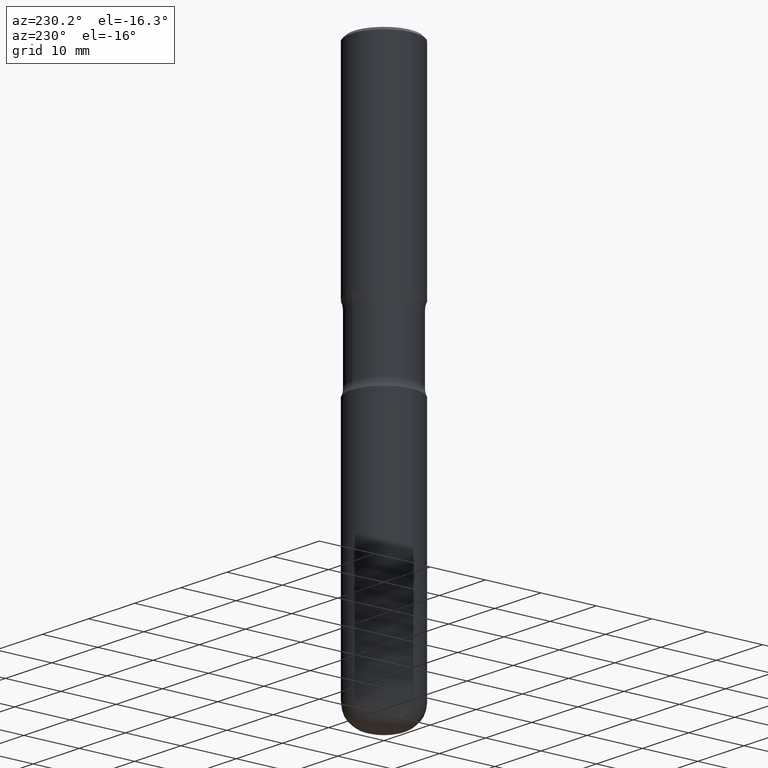
[diagram: clean part render]
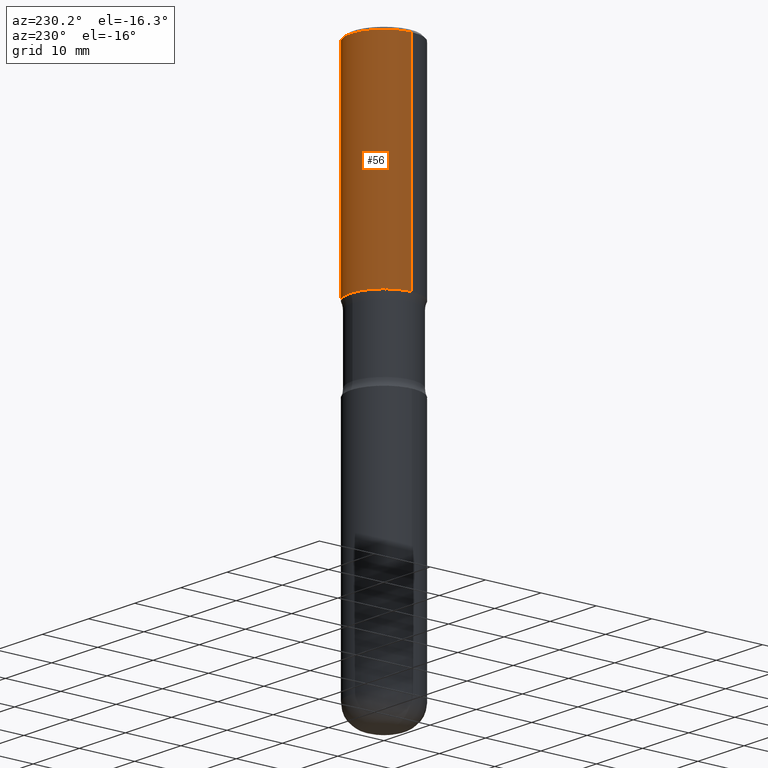
[diagram: same view with one face highlighted and labeled with its STEP entity id]
A machine part, auxiliary view. The second image highlights one B-rep face of the part: STEP entity #56.
In plain terms, the highlighted cylindrical surface (partial cylindrical patch) has radius 5.9995 mm, axis along (-0, 0, 1).
Its self-contained STEP definition (entity closure, byte-faithful):
#24 = ORIENTED_EDGE ( 'NONE', *, *, #347, .F. ) ;
#48 = VECTOR ( 'NONE', #55, 39.37007874015748143 ) ;
#55 = DIRECTION ( 'NONE',  ( -2.445468806185136877E-29, 3.491481338843145188E-15, 1.000000000000000000 ) ) ;
#56 = ADVANCED_FACE ( 'NONE', ( #160 ), #341, .T. ) ;
#70 = VERTEX_POINT ( 'NONE', #243 ) ;
#76 = DIRECTION ( 'NONE',  ( 1.000000000000000000, -6.982962677686267499E-15, 0.000000000000000000 ) ) ;
#89 = DIRECTION ( 'NONE',  ( -2.445468806185136597E-29, 3.491481338843145583E-15, 1.000000000000000000 ) ) ;
#94 = EDGE_CURVE ( 'NONE', #473, #70, #498, .T. ) ;
#120 = CARTESIAN_POINT ( 'NONE',  ( -0.2362000000000000210, 1.579546157692633424E-15, -0.02000000000000006981 ) ) ;
#140 = CARTESIAN_POINT ( 'NONE',  ( 3.658665880933583510E-29, -5.223605231043231238E-15, -1.496100000000000430 ) ) ;
#158 = DIRECTION ( 'NONE',  ( -2.445468806185136597E-29, 3.491481338843145583E-15, 1.000000000000000000 ) ) ;
#160 = FACE_OUTER_BOUND ( 'NONE', #238, .T. ) ;
#169 = EDGE_CURVE ( 'NONE', #70, #467, #177, .T. ) ;
#177 = LINE ( 'NONE', #432, #48 ) ;
#195 = CARTESIAN_POINT ( 'NONE',  ( 4.890937612370289799E-31, -6.982962677686315028E-17, -0.02000000000000006981 ) ) ;
#205 = DIRECTION ( 'NONE',  ( 1.000000000000000000, -6.982962677686267499E-15, 0.000000000000000000 ) ) ;
#231 = DIRECTION ( 'NONE',  ( -2.445468806185136877E-29, 3.491481338843145188E-15, 1.000000000000000000 ) ) ;
#238 = EDGE_LOOP ( 'NONE', ( #267, #464, #371, #24 ) ) ;
#243 = CARTESIAN_POINT ( 'NONE',  ( -0.2362000000000004374, -9.684154870446855490E-16, -1.496100000000000430 ) ) ;
#247 = VERTEX_POINT ( 'NONE', #330 ) ;
#267 = ORIENTED_EDGE ( 'NONE', *, *, #94, .T. ) ;
#273 = LINE ( 'NONE', #453, #403 ) ;
#297 = CARTESIAN_POINT ( 'NONE',  ( 0.000000000000000000, 0.000000000000000000, 0.000000000000000000 ) ) ;
#322 = AXIS2_PLACEMENT_3D ( 'NONE', #297, #158, #510 ) ;
#330 = CARTESIAN_POINT ( 'NONE',  ( 0.2362000000000000210, -1.690279253850499166E-15, -0.02000000000000006981 ) ) ;
#341 = CYLINDRICAL_SURFACE ( 'NONE', #322, 0.2362000000000002431 ) ;
#347 = EDGE_CURVE ( 'NONE', #473, #247, #273, .T. ) ;
#368 = AXIS2_PLACEMENT_3D ( 'NONE', #140, #532, #205 ) ;
#371 = ORIENTED_EDGE ( 'NONE', *, *, #530, .F. ) ;
#403 = VECTOR ( 'NONE', #231, 39.37007874015748143 ) ;
#432 = CARTESIAN_POINT ( 'NONE',  ( -0.2362000000000002431, 1.678301941865358366E-15, -1.161852468318209878E-29 ) ) ;
#453 = CARTESIAN_POINT ( 'NONE',  ( 0.2362000000000002431, -1.649375784469497906E-15, 1.151752954443001209E-29 ) ) ;
#464 = ORIENTED_EDGE ( 'NONE', *, *, #169, .T. ) ;
#467 = VERTEX_POINT ( 'NONE', #120 ) ;
#472 = CARTESIAN_POINT ( 'NONE',  ( 0.2362000000000004374, -6.872981015512730918E-15, -1.496100000000000430 ) ) ;
#473 = VERTEX_POINT ( 'NONE', #472 ) ;
#498 = CIRCLE ( 'NONE', #368, 0.2362000000000004374 ) ;
#506 = AXIS2_PLACEMENT_3D ( 'NONE', #195, #89, #76 ) ;
#510 = DIRECTION ( 'NONE',  ( 1.000000000000000000, -6.982962677686266711E-15, 4.876176775795935793E-29 ) ) ;
#526 = CIRCLE ( 'NONE', #506, 0.2362000000000000210 ) ;
#530 = EDGE_CURVE ( 'NONE', #247, #467, #526, .T. ) ;
#532 = DIRECTION ( 'NONE',  ( -2.445468806185136597E-29, 3.491481338843145583E-15, 1.000000000000000000 ) ) ;